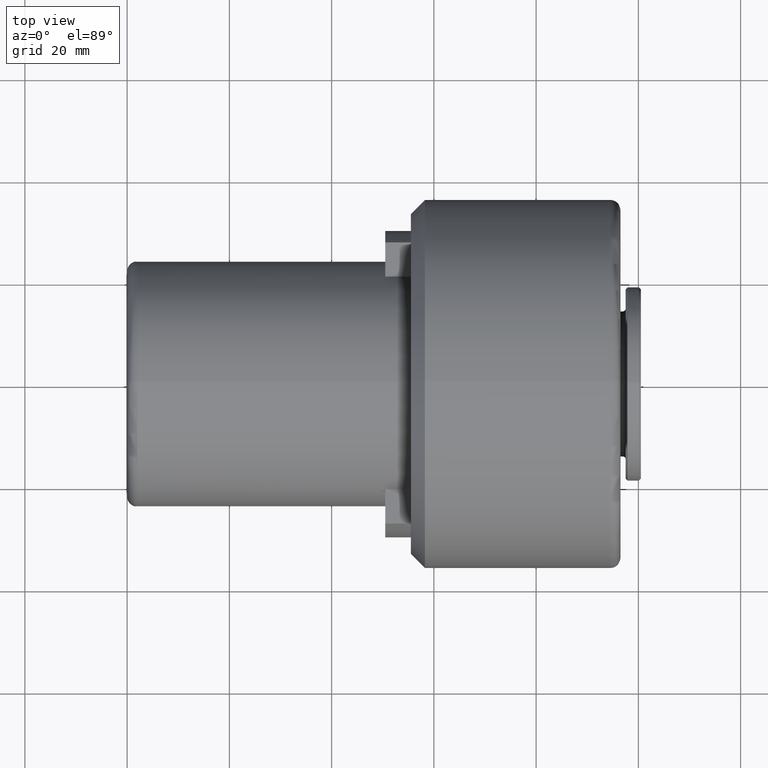
[diagram: clean part render]
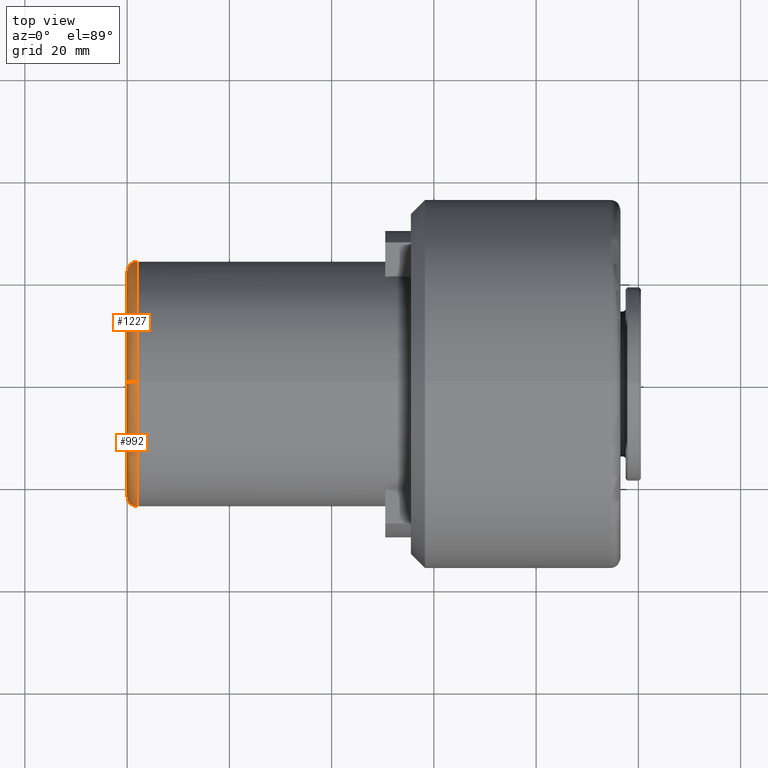
[diagram: same view with one multi-face feature highlighted, each face labeled with its STEP entity id]
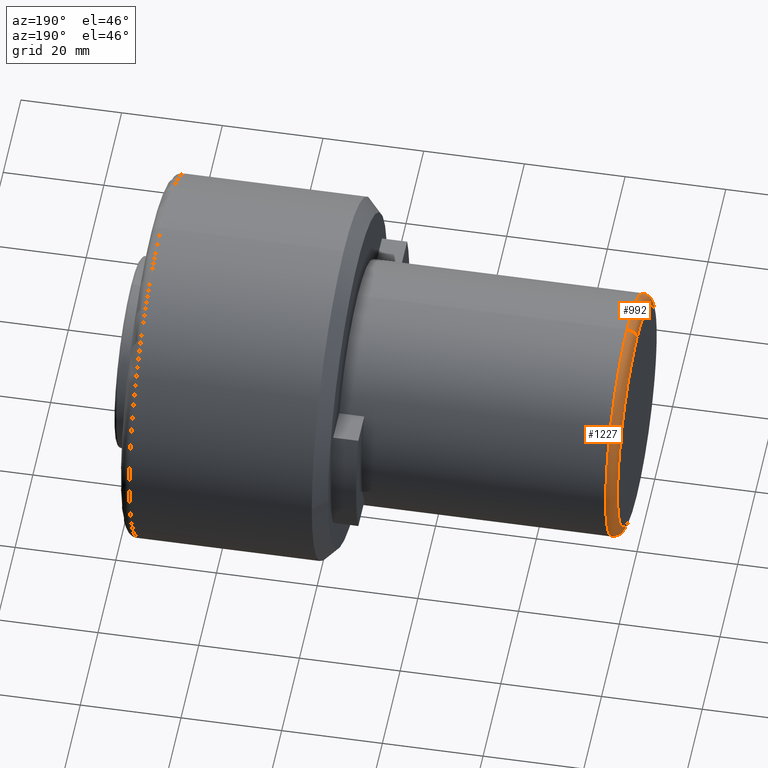
[diagram: same view with one multi-face feature highlighted, each face labeled with its STEP entity id]
A machine part, top view. The highlighted faces form ONE feature: a constant-radius fillet chain: 2 tangent blend faces with common blend radius 2 mm. The faces share edges in the B-rep.
A second angle (auxiliary view) of the same feature is appended — it is thin or edge-on in the first view.
Their STEP definitions:
[1] entity #992 (Torus):
#14 = CARTESIAN_POINT ( 'NONE',  ( 2.000000000000001800, 0.0000000000000000000, -7.733975497063264400E-015 ) ) ;
#17 = EDGE_CURVE ( 'NONE', #1244, #226, #194, .T. ) ;
#35 = CARTESIAN_POINT ( 'NONE',  ( 2.000000000000001800, 0.0000000000000000000, 21.99999999999999300 ) ) ;
#65 = DIRECTION ( 'NONE',  ( 1.000000000000000000, -0.0000000000000000000, -0.0000000000000000000 ) ) ;
#116 = DIRECTION ( 'NONE',  ( 0.0000000000000000000, 0.0000000000000000000, 1.000000000000000000 ) ) ;
#119 = CARTESIAN_POINT ( 'NONE',  ( 0.0000000000000000000, 0.0000000000000000000, 21.99999999999999300 ) ) ;
#190 = VERTEX_POINT ( 'NONE', #1053 ) ;
#194 = CIRCLE ( 'NONE', #1390, 22.00000000000000000 ) ;
#211 = CARTESIAN_POINT ( 'NONE',  ( 2.000000000000001800, 0.0000000000000000000, -7.733975497063264400E-015 ) ) ;
#226 = VERTEX_POINT ( 'NONE', #119 ) ;
#255 = DIRECTION ( 'NONE',  ( 0.0000000000000000000, -1.000000000000000000, 0.0000000000000000000 ) ) ;
#262 = CARTESIAN_POINT ( 'NONE',  ( 0.0000000000000000000, 2.816687638038912400E-015, -22.00000000000000700 ) ) ;
#349 = VERTEX_POINT ( 'NONE', #787 ) ;
#356 = AXIS2_PLACEMENT_3D ( 'NONE', #14, #1317, #874 ) ;
#359 = DIRECTION ( 'NONE',  ( 0.0000000000000000000, 0.0000000000000000000, -1.000000000000000000 ) ) ;
#365 = EDGE_CURVE ( 'NONE', #190, #349, #602, .T. ) ;
#379 = CARTESIAN_POINT ( 'NONE',  ( 0.0000000000000000000, 0.0000000000000000000, -7.733975497063264400E-015 ) ) ;
#447 = ORIENTED_EDGE ( 'NONE', *, *, #365, .F. ) ;
#458 = DIRECTION ( 'NONE',  ( 0.0000000000000000000, 0.0000000000000000000, 1.000000000000000000 ) ) ;
#584 = AXIS2_PLACEMENT_3D ( 'NONE', #211, #65, #116 ) ;
#602 = CIRCLE ( 'NONE', #584, 24.00000000000000000 ) ;
#666 = AXIS2_PLACEMENT_3D ( 'NONE', #834, #710, #766 ) ;
#709 = ORIENTED_EDGE ( 'NONE', *, *, #1127, .T. ) ;
#710 = DIRECTION ( 'NONE',  ( 0.0000000000000000000, 1.000000000000000000, 1.224646799147353200E-016 ) ) ;
#721 = EDGE_CURVE ( 'NONE', #349, #1244, #1116, .T. ) ;
#748 = CIRCLE ( 'NONE', #1160, 2.000000000000001800 ) ;
#766 = DIRECTION ( 'NONE',  ( 0.0000000000000000000, -1.224646799147351500E-016, 1.000000000000000000 ) ) ;
#787 = CARTESIAN_POINT ( 'NONE',  ( 2.000000000000001800, 2.939152317953648700E-015, -24.00000000000001100 ) ) ;
#834 = CARTESIAN_POINT ( 'NONE',  ( 2.000000000000001800, 2.694222958124176800E-015, -22.00000000000000700 ) ) ;
#874 = DIRECTION ( 'NONE',  ( 0.0000000000000000000, 0.0000000000000000000, 1.000000000000000000 ) ) ;
#882 = FACE_OUTER_BOUND ( 'NONE', #1367, .T. ) ;
#992 = ADVANCED_FACE ( 'NONE', ( #882 ), #1167, .T. ) ;
#1016 = ORIENTED_EDGE ( 'NONE', *, *, #721, .F. ) ;
#1053 = CARTESIAN_POINT ( 'NONE',  ( 2.000000000000001800, 0.0000000000000000000, 23.99999999999999300 ) ) ;
#1059 = DIRECTION ( 'NONE',  ( -1.000000000000000000, 0.0000000000000000000, 0.0000000000000000000 ) ) ;
#1116 = CIRCLE ( 'NONE', #666, 2.000000000000001800 ) ;
#1127 = EDGE_CURVE ( 'NONE', #190, #226, #748, .T. ) ;
#1160 = AXIS2_PLACEMENT_3D ( 'NONE', #35, #255, #359 ) ;
#1167 = TOROIDAL_SURFACE ( 'NONE', #356, 22.00000000000000000, 2.000000000000000000 ) ;
#1244 = VERTEX_POINT ( 'NONE', #262 ) ;
#1317 = DIRECTION ( 'NONE',  ( -1.000000000000000000, 0.0000000000000000000, 0.0000000000000000000 ) ) ;
#1367 = EDGE_LOOP ( 'NONE', ( #1016, #447, #709, #1368 ) ) ;
#1368 = ORIENTED_EDGE ( 'NONE', *, *, #17, .F. ) ;
#1390 = AXIS2_PLACEMENT_3D ( 'NONE', #379, #1059, #458 ) ;
[2] entity #1227 (Torus):
#35 = CARTESIAN_POINT ( 'NONE',  ( 2.000000000000001800, 0.0000000000000000000, 21.99999999999999300 ) ) ;
#71 = ORIENTED_EDGE ( 'NONE', *, *, #721, .T. ) ;
#119 = CARTESIAN_POINT ( 'NONE',  ( 0.0000000000000000000, 0.0000000000000000000, 21.99999999999999300 ) ) ;
#145 = CIRCLE ( 'NONE', #635, 22.00000000000000000 ) ;
#190 = VERTEX_POINT ( 'NONE', #1053 ) ;
#226 = VERTEX_POINT ( 'NONE', #119 ) ;
#255 = DIRECTION ( 'NONE',  ( 0.0000000000000000000, -1.000000000000000000, 0.0000000000000000000 ) ) ;
#262 = CARTESIAN_POINT ( 'NONE',  ( 0.0000000000000000000, 2.816687638038912400E-015, -22.00000000000000700 ) ) ;
#335 = EDGE_CURVE ( 'NONE', #226, #1244, #145, .T. ) ;
#349 = VERTEX_POINT ( 'NONE', #787 ) ;
#359 = DIRECTION ( 'NONE',  ( 0.0000000000000000000, 0.0000000000000000000, -1.000000000000000000 ) ) ;
#372 = DIRECTION ( 'NONE',  ( 1.000000000000000000, -0.0000000000000000000, -0.0000000000000000000 ) ) ;
#494 = DIRECTION ( 'NONE',  ( -1.000000000000000000, 0.0000000000000000000, 0.0000000000000000000 ) ) ;
#518 = ORIENTED_EDGE ( 'NONE', *, *, #1127, .F. ) ;
#604 = CARTESIAN_POINT ( 'NONE',  ( 2.000000000000001800, 0.0000000000000000000, -7.733975497063264400E-015 ) ) ;
#605 = ORIENTED_EDGE ( 'NONE', *, *, #1262, .F. ) ;
#635 = AXIS2_PLACEMENT_3D ( 'NONE', #1186, #980, #1012 ) ;
#652 = CIRCLE ( 'NONE', #876, 24.00000000000000000 ) ;
#666 = AXIS2_PLACEMENT_3D ( 'NONE', #834, #710, #766 ) ;
#684 = FACE_OUTER_BOUND ( 'NONE', #791, .T. ) ;
#710 = DIRECTION ( 'NONE',  ( 0.0000000000000000000, 1.000000000000000000, 1.224646799147353200E-016 ) ) ;
#721 = EDGE_CURVE ( 'NONE', #349, #1244, #1116, .T. ) ;
#748 = CIRCLE ( 'NONE', #1160, 2.000000000000001800 ) ;
#766 = DIRECTION ( 'NONE',  ( 0.0000000000000000000, -1.224646799147351500E-016, 1.000000000000000000 ) ) ;
#787 = CARTESIAN_POINT ( 'NONE',  ( 2.000000000000001800, 2.939152317953648700E-015, -24.00000000000001100 ) ) ;
#791 = EDGE_LOOP ( 'NONE', ( #605, #71, #1089, #518 ) ) ;
#834 = CARTESIAN_POINT ( 'NONE',  ( 2.000000000000001800, 2.694222958124176800E-015, -22.00000000000000700 ) ) ;
#876 = AXIS2_PLACEMENT_3D ( 'NONE', #1143, #372, #1013 ) ;
#980 = DIRECTION ( 'NONE',  ( -1.000000000000000000, 0.0000000000000000000, 0.0000000000000000000 ) ) ;
#988 = AXIS2_PLACEMENT_3D ( 'NONE', #604, #494, #1304 ) ;
#989 = TOROIDAL_SURFACE ( 'NONE', #988, 22.00000000000000000, 2.000000000000000000 ) ;
#1012 = DIRECTION ( 'NONE',  ( 0.0000000000000000000, 0.0000000000000000000, 1.000000000000000000 ) ) ;
#1013 = DIRECTION ( 'NONE',  ( 0.0000000000000000000, 0.0000000000000000000, 1.000000000000000000 ) ) ;
#1053 = CARTESIAN_POINT ( 'NONE',  ( 2.000000000000001800, 0.0000000000000000000, 23.99999999999999300 ) ) ;
#1089 = ORIENTED_EDGE ( 'NONE', *, *, #335, .F. ) ;
#1116 = CIRCLE ( 'NONE', #666, 2.000000000000001800 ) ;
#1127 = EDGE_CURVE ( 'NONE', #190, #226, #748, .T. ) ;
#1143 = CARTESIAN_POINT ( 'NONE',  ( 2.000000000000001800, 0.0000000000000000000, -7.733975497063264400E-015 ) ) ;
#1160 = AXIS2_PLACEMENT_3D ( 'NONE', #35, #255, #359 ) ;
#1186 = CARTESIAN_POINT ( 'NONE',  ( 0.0000000000000000000, 0.0000000000000000000, -7.733975497063264400E-015 ) ) ;
#1227 = ADVANCED_FACE ( 'NONE', ( #684 ), #989, .T. ) ;
#1244 = VERTEX_POINT ( 'NONE', #262 ) ;
#1262 = EDGE_CURVE ( 'NONE', #349, #190, #652, .T. ) ;
#1304 = DIRECTION ( 'NONE',  ( 0.0000000000000000000, 0.0000000000000000000, 1.000000000000000000 ) ) ;